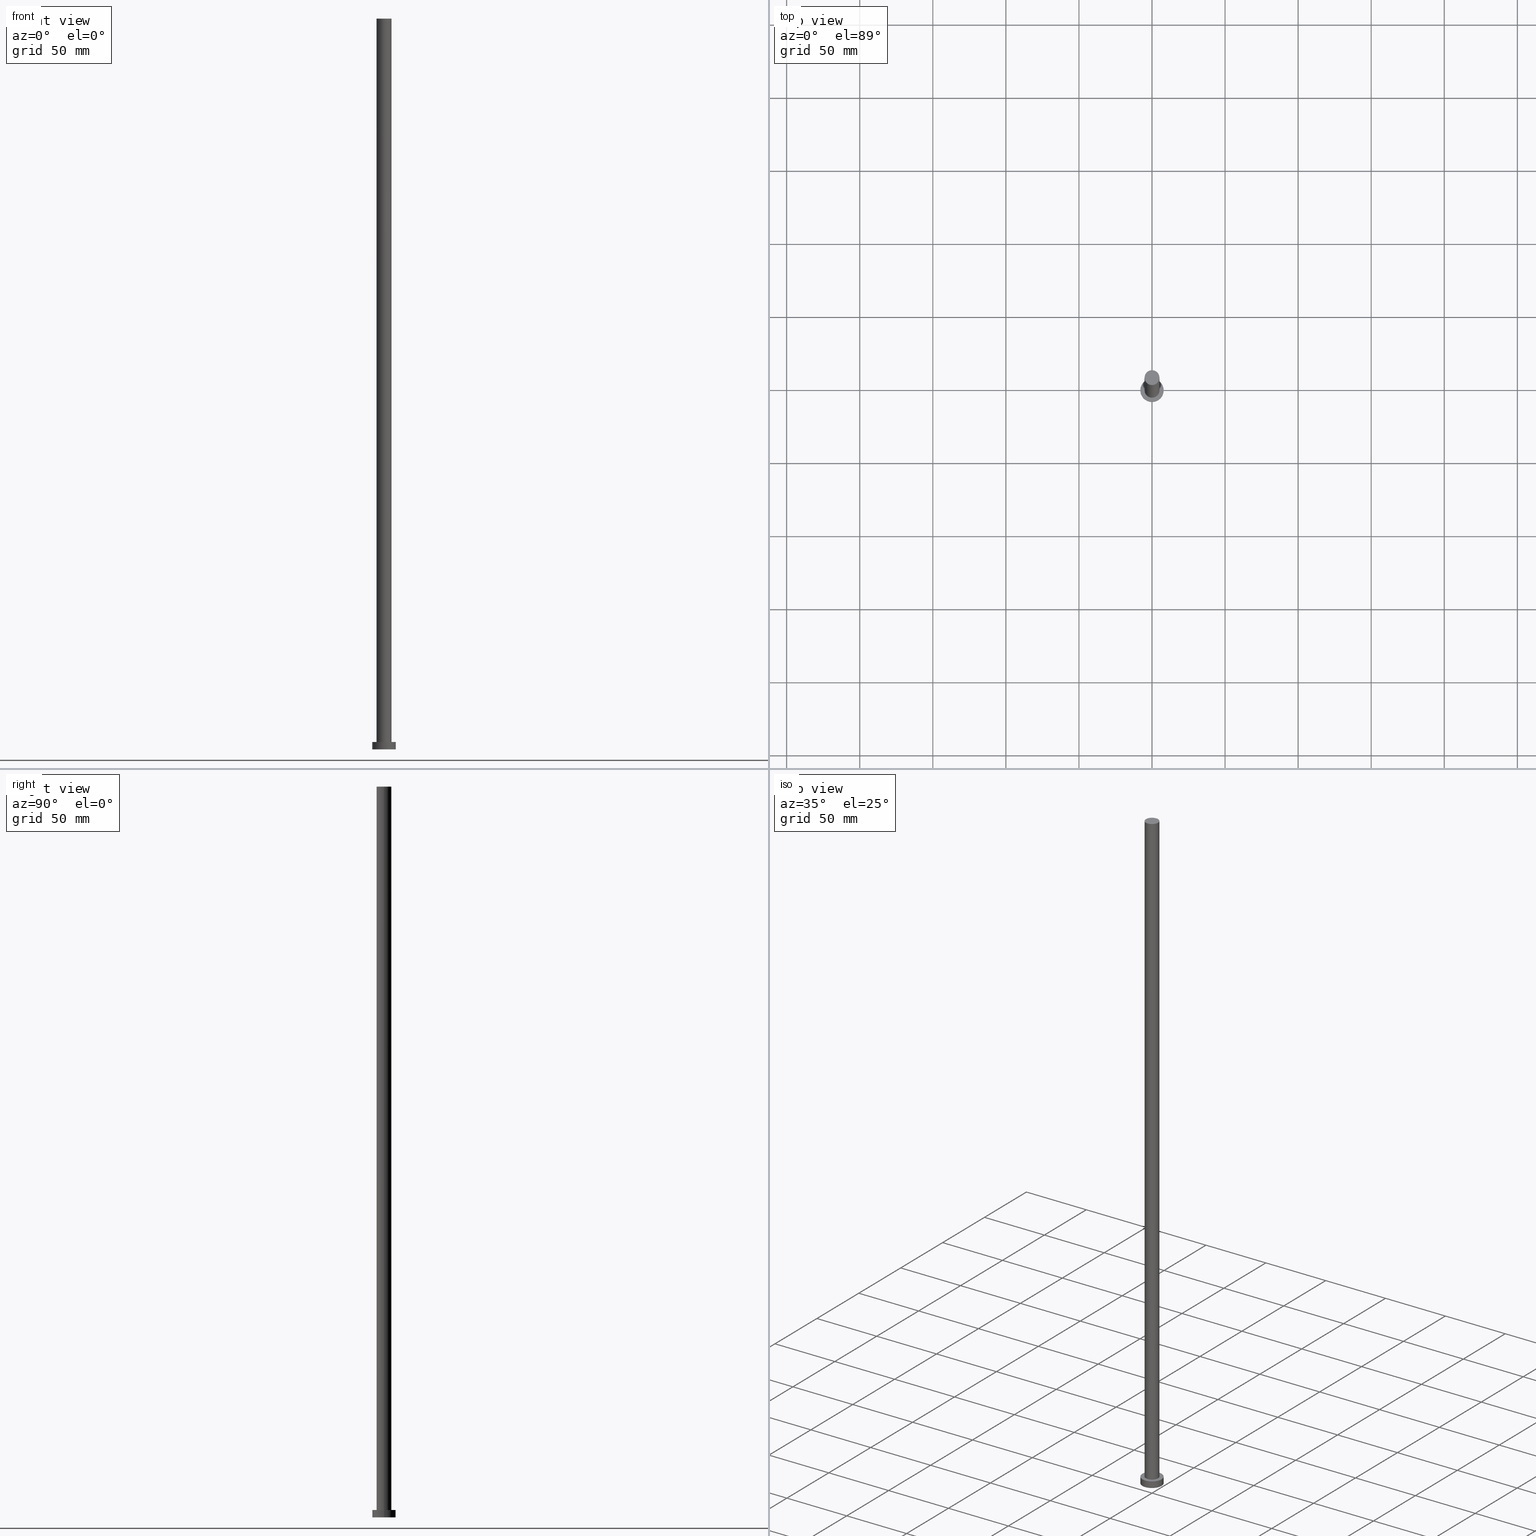
[diagram: canonical four-view strip — front | top / right | iso, engineering-drawing reading convention]
A machine part, canonical four-view strip (front | top / right | iso — engineering-drawing reading convention). The complete STEP part file that produces these views, byte-faithful:
ISO-10303-21;
HEADER;
FILE_DESCRIPTION (( 'STEP AP203' ),
    '1' );
FILE_NAME ('c0ff.STEP',
    '2023-02-12T10:58:17',
    ( '' ),
    ( '' ),
    'SwSTEP 2.0',
    'SolidWorks 2019',
    '' );
FILE_SCHEMA (( 'CONFIG_CONTROL_DESIGN' ));
ENDSEC;

DATA;
#1 = DIRECTION ( 'NONE',  ( 1.000000000000000000, 0.000000000000000000, 0.000000000000000000 ) ) ;
#2 = AXIS2_PLACEMENT_3D ( 'NONE', #12, #33, #134 ) ;
#3 = ADVANCED_FACE ( 'NONE', ( #16 ), #119, .T. ) ;
#4 = LINE ( 'NONE', #168, #56 ) ;
#5 = COORDINATED_UNIVERSAL_TIME_OFFSET ( 1, 0, .AHEAD. ) ;
#6 = CIRCLE ( 'NONE', #62, 5.099999999999999645 ) ;
#7 = PERSON_AND_ORGANIZATION ( #163, #160 ) ;
#8 = CC_DESIGN_DATE_AND_TIME_ASSIGNMENT ( #37, #105, ( #150 ) ) ;
#9 = PLANE ( 'NONE',  #157 ) ;
#10 = LOCAL_TIME ( 11, 58, 17.00000000000000000, #94 ) ;
#11 = FACE_OUTER_BOUND ( 'NONE', #58, .T. ) ;
#12 = CARTESIAN_POINT ( 'NONE',  ( 0.000000000000000000, 0.000000000000000000, 500.0000000000000000 ) ) ;
#13 = DIRECTION ( 'NONE',  ( 1.000000000000000000, 0.000000000000000000, -0.000000000000000000 ) ) ;
#14 = EDGE_CURVE ( 'NONE', #122, #131, #142, .T. ) ;
#15 = ORIENTED_EDGE ( 'NONE', *, *, #245, .F. ) ;
#16 = FACE_OUTER_BOUND ( 'NONE', #161, .T. ) ;
#17 = VERTEX_POINT ( 'NONE', #255 ) ;
#18 = PERSON_AND_ORGANIZATION ( #163, #160 ) ;
#19 = AXIS2_PLACEMENT_3D ( 'NONE', #215, #36, #77 ) ;
#20 = PRODUCT_DEFINITION ( 'NEZN�M�', '', #125, #202 ) ;
#21 = PERSON_AND_ORGANIZATION ( #163, #160 ) ;
#22 = CC_DESIGN_PERSON_AND_ORGANIZATION_ASSIGNMENT ( #43, #34, ( #20 ) ) ;
#23 = AXIS2_PLACEMENT_3D ( 'NONE', #194, #155, #147 ) ;
#24 = CARTESIAN_POINT ( 'NONE',  ( 0.000000000000000000, 0.000000000000000000, 5.000000000000000000 ) ) ;
#25 = EDGE_LOOP ( 'NONE', ( #248, #207, #39, #15 ) ) ;
#26 = APPROVAL_PERSON_ORGANIZATION ( #21, #49, #75 ) ;
#27 = DIRECTION ( 'NONE',  ( -1.000000000000000000, 0.000000000000000000, 0.000000000000000000 ) ) ;
#28 = ADVANCED_FACE ( 'NONE', ( #156 ), #180, .T. ) ;
#29 = APPLICATION_CONTEXT ( 'configuration controlled 3d designs of mechanical parts and assemblies' ) ;
#30 = DIRECTION ( 'NONE',  ( 0.000000000000000000, 0.000000000000000000, 1.000000000000000000 ) ) ;
#31 = AXIS2_PLACEMENT_3D ( 'NONE', #198, #179, #55 ) ;
#32 =( NAMED_UNIT ( * ) SI_UNIT ( $, .STERADIAN. ) SOLID_ANGLE_UNIT ( ) );
#33 = DIRECTION ( 'NONE',  ( -0.000000000000000000, -0.000000000000000000, -1.000000000000000000 ) ) ;
#34 = PERSON_AND_ORGANIZATION_ROLE ( 'creator' ) ;
#35 = ORIENTED_EDGE ( 'NONE', *, *, #251, .F. ) ;
#36 = DIRECTION ( 'NONE',  ( 0.000000000000000000, 0.000000000000000000, 1.000000000000000000 ) ) ;
#37 = DATE_AND_TIME ( #217, #225 ) ;
#38 = CIRCLE ( 'NONE', #107, 8.000000000000000000 ) ;
#39 = ORIENTED_EDGE ( 'NONE', *, *, #70, .T. ) ;
#40 = PERSON_AND_ORGANIZATION ( #163, #160 ) ;
#41 = CIRCLE ( 'NONE', #169, 5.099999999999999645 ) ;
#42 = FACE_OUTER_BOUND ( 'NONE', #96, .T. ) ;
#43 = PERSON_AND_ORGANIZATION ( #163, #160 ) ;
#44 = FACE_OUTER_BOUND ( 'NONE', #25, .T. ) ;
#45 = CIRCLE ( 'NONE', #193, 5.099999999999999645 ) ;
#46 = DIRECTION ( 'NONE',  ( -0.000000000000000000, -0.000000000000000000, -1.000000000000000000 ) ) ;
#47 = ORIENTED_EDGE ( 'NONE', *, *, #87, .F. ) ;
#48 = UNCERTAINTY_MEASURE_WITH_UNIT (LENGTH_MEASURE( 1.000000000000000082E-05 ), #129, 'distance_accuracy_value', 'NONE');
#49 = APPROVAL ( #132, 'NEUR�EN�' ) ;
#50 = APPROVAL_PERSON_ORGANIZATION ( #7, #167, #188 ) ;
#51 = PLANE ( 'NONE',  #23 ) ;
#52 = DIRECTION ( 'NONE',  ( 1.000000000000000000, 0.000000000000000000, 0.000000000000000000 ) ) ;
#53 = ORIENTED_EDGE ( 'NONE', *, *, #70, .F. ) ;
#54 = CIRCLE ( 'NONE', #116, 8.000000000000000000 ) ;
#55 = DIRECTION ( 'NONE',  ( 1.000000000000000000, 0.000000000000000000, 0.000000000000000000 ) ) ;
#56 = VECTOR ( 'NONE', #102, 1000.000000000000000 ) ;
#57 = ORIENTED_EDGE ( 'NONE', *, *, #61, .T. ) ;
#58 = EDGE_LOOP ( 'NONE', ( #182, #72 ) ) ;
#59 = PERSON_AND_ORGANIZATION_ROLE ( 'classification_officer' ) ;
#60 = PERSON_AND_ORGANIZATION ( #163, #160 ) ;
#61 = EDGE_CURVE ( 'NONE', #154, #130, #67, .T. ) ;
#62 = AXIS2_PLACEMENT_3D ( 'NONE', #118, #165, #139 ) ;
#63 = DIRECTION ( 'NONE',  ( 1.000000000000000000, 0.000000000000000000, 0.000000000000000000 ) ) ;
#64 = DIRECTION ( 'NONE',  ( 1.000000000000000000, 0.000000000000000000, 0.000000000000000000 ) ) ;
#65 = ADVANCED_BREP_SHAPE_REPRESENTATION ( 'c0ff', ( #126, #178 ), #221 ) ;
#66 = DATE_AND_TIME ( #244, #189 ) ;
#67 = CIRCLE ( 'NONE', #19, 8.000000000000000000 ) ;
#68 = CARTESIAN_POINT ( 'NONE',  ( 0.000000000000000000, 0.000000000000000000, 500.0000000000000000 ) ) ;
#69 = CARTESIAN_POINT ( 'NONE',  ( -8.000000000000000000, 0.000000000000000000, 0.000000000000000000 ) ) ;
#70 = EDGE_CURVE ( 'NONE', #130, #154, #38, .T. ) ;
#71 = CARTESIAN_POINT ( 'NONE',  ( 5.099999999999999645, 6.245698675651500839E-16, 500.0000000000000000 ) ) ;
#72 = ORIENTED_EDGE ( 'NONE', *, *, #195, .T. ) ;
#73 = ADVANCED_FACE ( 'NONE', ( #44 ), #108, .T. ) ;
#74 = DIRECTION ( 'NONE',  ( -0.000000000000000000, -0.000000000000000000, -1.000000000000000000 ) ) ;
#75 = APPROVAL_ROLE ( '' ) ;
#76 = FACE_BOUND ( 'NONE', #123, .T. ) ;
#77 = DIRECTION ( 'NONE',  ( 1.000000000000000000, 0.000000000000000000, 0.000000000000000000 ) ) ;
#78 = ADVANCED_FACE ( 'NONE', ( #42 ), #9, .F. ) ;
#79 = CLOSED_SHELL ( 'NONE', ( #28, #73, #144, #90, #78, #3, #228 ) ) ;
#80 = AXIS2_PLACEMENT_3D ( 'NONE', #24, #82, #224 ) ;
#81 = DIRECTION ( 'NONE',  ( 1.000000000000000000, 0.000000000000000000, -0.000000000000000000 ) ) ;
#82 = DIRECTION ( 'NONE',  ( -0.000000000000000000, -0.000000000000000000, -1.000000000000000000 ) ) ;
#83 = CIRCLE ( 'NONE', #229, 5.099999999999999645 ) ;
#84 = CC_DESIGN_APPROVAL ( #190, ( #125 ) ) ;
#85 = CARTESIAN_POINT ( 'NONE',  ( 0.000000000000000000, 0.000000000000000000, 5.000000000000000000 ) ) ;
#86 = CARTESIAN_POINT ( 'NONE',  ( -8.000000000000000000, 0.000000000000000000, 5.000000000000000000 ) ) ;
#87 = EDGE_CURVE ( 'NONE', #99, #92, #220, .T. ) ;
#88 = CYLINDRICAL_SURFACE ( 'NONE', #110, 8.000000000000000000 ) ;
#89 = ORIENTED_EDGE ( 'NONE', *, *, #206, .F. ) ;
#90 = ADVANCED_FACE ( 'NONE', ( #76, #218 ), #51, .T. ) ;
#91 = COORDINATED_UNIVERSAL_TIME_OFFSET ( 1, 0, .AHEAD. ) ;
#92 = VERTEX_POINT ( 'NONE', #230 ) ;
#93 = PERSON_AND_ORGANIZATION ( #163, #160 ) ;
#94 = COORDINATED_UNIVERSAL_TIME_OFFSET ( 1, 0, .AHEAD. ) ;
#95 = DATE_AND_TIME ( #120, #243 ) ;
#96 = EDGE_LOOP ( 'NONE', ( #196, #53 ) ) ;
#97 = PRODUCT_DEFINITION_SHAPE ( 'NONE', 'NONE',  #20 ) ;
#98 = CARTESIAN_POINT ( 'NONE',  ( -5.099999999999999645, 0.000000000000000000, 500.0000000000000000 ) ) ;
#99 = VERTEX_POINT ( 'NONE', #236 ) ;
#100 = DIRECTION ( 'NONE',  ( 0.000000000000000000, 0.000000000000000000, 1.000000000000000000 ) ) ;
#101 = CC_DESIGN_PERSON_AND_ORGANIZATION_ASSIGNMENT ( #40, #59, ( #150 ) ) ;
#102 = DIRECTION ( 'NONE',  ( -0.000000000000000000, -0.000000000000000000, -1.000000000000000000 ) ) ;
#103 = ORIENTED_EDGE ( 'NONE', *, *, #254, .T. ) ;
#104 = EDGE_CURVE ( 'NONE', #131, #122, #54, .T. ) ;
#105 = DATE_TIME_ROLE ( 'classification_date' ) ;
#106 = APPLICATION_PROTOCOL_DEFINITION ( 'international standard', 'config_control_design', 1994, #29 ) ;
#107 = AXIS2_PLACEMENT_3D ( 'NONE', #124, #138, #227 ) ;
#108 = CYLINDRICAL_SURFACE ( 'NONE', #80, 8.000000000000000000 ) ;
#109 = EDGE_LOOP ( 'NONE', ( #146, #240, #214, #47 ) ) ;
#110 = AXIS2_PLACEMENT_3D ( 'NONE', #211, #174, #27 ) ;
#111 = CC_DESIGN_SECURITY_CLASSIFICATION ( #150, ( #125 ) ) ;
#112 = ORIENTED_EDGE ( 'NONE', *, *, #254, .F. ) ;
#113 = DATE_TIME_ROLE ( 'creation_date' ) ;
#114 = LINE ( 'NONE', #149, #166 ) ;
#115 = APPLICATION_PROTOCOL_DEFINITION ( 'international standard', 'config_control_design', 1994, #127 ) ;
#116 = AXIS2_PLACEMENT_3D ( 'NONE', #216, #100, #183 ) ;
#117 = PRODUCT_RELATED_PRODUCT_CATEGORY ( 'detail', '', ( #197 ) ) ;
#118 = CARTESIAN_POINT ( 'NONE',  ( 0.000000000000000000, 0.000000000000000000, 5.000000000000000000 ) ) ;
#119 = CYLINDRICAL_SURFACE ( 'NONE', #2, 5.099999999999999645 ) ;
#120 = CALENDAR_DATE ( 2023, 12, 2 ) ;
#121 = DIRECTION ( 'NONE',  ( 0.000000000000000000, 0.000000000000000000, 1.000000000000000000 ) ) ;
#122 = VERTEX_POINT ( 'NONE', #86 ) ;
#123 = EDGE_LOOP ( 'NONE', ( #112, #89 ) ) ;
#124 = CARTESIAN_POINT ( 'NONE',  ( 0.000000000000000000, 0.000000000000000000, 0.000000000000000000 ) ) ;
#125 = PRODUCT_DEFINITION_FORMATION_WITH_SPECIFIED_SOURCE ( 'LIBOVOLN�', '', #197, .NOT_KNOWN. ) ;
#126 = MANIFOLD_SOLID_BREP ( 'P�idat vysunut�m3', #79 ) ;
#127 = APPLICATION_CONTEXT ( 'configuration controlled 3d designs of mechanical parts and assemblies' ) ;
#128 = EDGE_LOOP ( 'NONE', ( #210, #219 ) ) ;
#129 =( LENGTH_UNIT ( ) NAMED_UNIT ( * ) SI_UNIT ( .MILLI., .METRE. ) );
#130 = VERTEX_POINT ( 'NONE', #223 ) ;
#131 = VERTEX_POINT ( 'NONE', #170 ) ;
#132 = APPROVAL_STATUS ( 'not_yet_approved' ) ;
#133 = CARTESIAN_POINT ( 'NONE',  ( 0.000000000000000000, 0.000000000000000000, 0.000000000000000000 ) ) ;
#134 = DIRECTION ( 'NONE',  ( -1.000000000000000000, 0.000000000000000000, 0.000000000000000000 ) ) ;
#135 = DIRECTION ( 'NONE',  ( 0.000000000000000000, 0.000000000000000000, 1.000000000000000000 ) ) ;
#136 = APPROVAL_DATE_TIME ( #200, #49 ) ;
#137 = DIRECTION ( 'NONE',  ( 0.000000000000000000, 0.000000000000000000, 1.000000000000000000 ) ) ;
#138 = DIRECTION ( 'NONE',  ( 0.000000000000000000, 0.000000000000000000, 1.000000000000000000 ) ) ;
#139 = DIRECTION ( 'NONE',  ( 1.000000000000000000, 0.000000000000000000, 0.000000000000000000 ) ) ;
#140 = CC_DESIGN_PERSON_AND_ORGANIZATION_ASSIGNMENT ( #93, #176, ( #125 ) ) ;
#141 = PERSON_AND_ORGANIZATION_ROLE ( 'creator' ) ;
#142 = CIRCLE ( 'NONE', #31, 8.000000000000000000 ) ;
#143 = FACE_OUTER_BOUND ( 'NONE', #238, .T. ) ;
#144 = ADVANCED_FACE ( 'NONE', ( #143 ), #88, .T. ) ;
#145 = CC_DESIGN_APPROVAL ( #167, ( #20 ) ) ;
#146 = ORIENTED_EDGE ( 'NONE', *, *, #195, .F. ) ;
#147 = DIRECTION ( 'NONE',  ( 1.000000000000000000, 0.000000000000000000, -0.000000000000000000 ) ) ;
#148 = CALENDAR_DATE ( 2023, 12, 2 ) ;
#149 = CARTESIAN_POINT ( 'NONE',  ( 8.000000000000000000, 9.797174393178825657E-16, 5.000000000000000000 ) ) ;
#150 = SECURITY_CLASSIFICATION ( '', '', #222 ) ;
#151 = EDGE_CURVE ( 'NONE', #17, #175, #249, .T. ) ;
#152 = PERSON_AND_ORGANIZATION ( #163, #160 ) ;
#153 = PLANE ( 'NONE',  #172 ) ;
#154 = VERTEX_POINT ( 'NONE', #69 ) ;
#155 = DIRECTION ( 'NONE',  ( 0.000000000000000000, 0.000000000000000000, 1.000000000000000000 ) ) ;
#156 = FACE_OUTER_BOUND ( 'NONE', #109, .T. ) ;
#157 = AXIS2_PLACEMENT_3D ( 'NONE', #133, #121, #13 ) ;
#158 = COORDINATED_UNIVERSAL_TIME_OFFSET ( 1, 0, .AHEAD. ) ;
#159 = EDGE_CURVE ( 'NONE', #131, #130, #114, .T. ) ;
#160 = ORGANIZATION ( 'NEUR�EN�', 'NEUR�EN�', '' ) ;
#161 = EDGE_LOOP ( 'NONE', ( #234, #35, #171, #103 ) ) ;
#162 = CALENDAR_DATE ( 2023, 12, 2 ) ;
#163 = PERSON ( 'NEUR�EN�', 'NEUR�EN�', 'NEUR�EN�', ('NEUR�EN�'), ('NEUR�EN�'), ('NEUR�EN�') ) ;
#164 = COORDINATED_UNIVERSAL_TIME_OFFSET ( 1, 0, .AHEAD. ) ;
#165 = DIRECTION ( 'NONE',  ( 0.000000000000000000, 0.000000000000000000, 1.000000000000000000 ) ) ;
#166 = VECTOR ( 'NONE', #46, 1000.000000000000000 ) ;
#167 = APPROVAL ( #173, 'NEUR�EN�' ) ;
#168 = CARTESIAN_POINT ( 'NONE',  ( -8.000000000000000000, 0.000000000000000000, 5.000000000000000000 ) ) ;
#169 = AXIS2_PLACEMENT_3D ( 'NONE', #184, #233, #52 ) ;
#170 = CARTESIAN_POINT ( 'NONE',  ( 8.000000000000000000, 9.797174393178825657E-16, 5.000000000000000000 ) ) ;
#171 = ORIENTED_EDGE ( 'NONE', *, *, #87, .T. ) ;
#172 = AXIS2_PLACEMENT_3D ( 'NONE', #192, #187, #81 ) ;
#173 = APPROVAL_STATUS ( 'not_yet_approved' ) ;
#174 = DIRECTION ( 'NONE',  ( -0.000000000000000000, -0.000000000000000000, -1.000000000000000000 ) ) ;
#175 = VERTEX_POINT ( 'NONE', #191 ) ;
#176 = PERSON_AND_ORGANIZATION_ROLE ( 'design_supplier' ) ;
#177 = DIRECTION ( 'NONE',  ( -0.000000000000000000, -0.000000000000000000, -1.000000000000000000 ) ) ;
#178 = AXIS2_PLACEMENT_3D ( 'NONE', #241, #30, #63 ) ;
#179 = DIRECTION ( 'NONE',  ( 0.000000000000000000, 0.000000000000000000, 1.000000000000000000 ) ) ;
#180 = CYLINDRICAL_SURFACE ( 'NONE', #246, 5.099999999999999645 ) ;
#181 = APPROVAL_PERSON_ORGANIZATION ( #152, #190, #252 ) ;
#182 = ORIENTED_EDGE ( 'NONE', *, *, #251, .T. ) ;
#183 = DIRECTION ( 'NONE',  ( 1.000000000000000000, 0.000000000000000000, 0.000000000000000000 ) ) ;
#184 = CARTESIAN_POINT ( 'NONE',  ( 0.000000000000000000, 0.000000000000000000, 500.0000000000000000 ) ) ;
#185 = SHAPE_DEFINITION_REPRESENTATION ( #97, #65 ) ;
#186 = VECTOR ( 'NONE', #177, 1000.000000000000000 ) ;
#187 = DIRECTION ( 'NONE',  ( 0.000000000000000000, 0.000000000000000000, 1.000000000000000000 ) ) ;
#188 = APPROVAL_ROLE ( '' ) ;
#189 = LOCAL_TIME ( 11, 58, 17.00000000000000000, #5 ) ;
#190 = APPROVAL ( #208, 'NEUR�EN�' ) ;
#191 = CARTESIAN_POINT ( 'NONE',  ( 5.099999999999999645, 6.245698675651500839E-16, 5.000000000000000000 ) ) ;
#192 = CARTESIAN_POINT ( 'NONE',  ( 0.000000000000000000, 0.000000000000000000, 500.0000000000000000 ) ) ;
#193 = AXIS2_PLACEMENT_3D ( 'NONE', #68, #135, #64 ) ;
#194 = CARTESIAN_POINT ( 'NONE',  ( 0.000000000000000000, 0.000000000000000000, 5.000000000000000000 ) ) ;
#195 = EDGE_CURVE ( 'NONE', #17, #99, #45, .T. ) ;
#196 = ORIENTED_EDGE ( 'NONE', *, *, #61, .F. ) ;
#197 = PRODUCT ( 'c0ff', 'c0ff', '', ( #203 ) ) ;
#198 = CARTESIAN_POINT ( 'NONE',  ( 0.000000000000000000, 0.000000000000000000, 5.000000000000000000 ) ) ;
#199 = ORIENTED_EDGE ( 'NONE', *, *, #245, .T. ) ;
#200 = DATE_AND_TIME ( #162, #250 ) ;
#201 = CC_DESIGN_PERSON_AND_ORGANIZATION_ASSIGNMENT ( #60, #141, ( #125 ) ) ;
#202 = DESIGN_CONTEXT ( 'detailed design', #29, 'design' ) ;
#203 = MECHANICAL_CONTEXT ( 'NONE', #127, 'mechanical' ) ;
#204 = ORIENTED_EDGE ( 'NONE', *, *, #14, .F. ) ;
#205 = CC_DESIGN_APPROVAL ( #49, ( #150 ) ) ;
#206 = EDGE_CURVE ( 'NONE', #175, #92, #83, .T. ) ;
#207 = ORIENTED_EDGE ( 'NONE', *, *, #159, .T. ) ;
#208 = APPROVAL_STATUS ( 'not_yet_approved' ) ;
#209 = CC_DESIGN_PERSON_AND_ORGANIZATION_ASSIGNMENT ( #18, #242, ( #197 ) ) ;
#210 = ORIENTED_EDGE ( 'NONE', *, *, #14, .T. ) ;
#211 = CARTESIAN_POINT ( 'NONE',  ( 0.000000000000000000, 0.000000000000000000, 5.000000000000000000 ) ) ;
#212 = VECTOR ( 'NONE', #232, 1000.000000000000000 ) ;
#213 =( NAMED_UNIT ( * ) PLANE_ANGLE_UNIT ( ) SI_UNIT ( $, .RADIAN. ) );
#214 = ORIENTED_EDGE ( 'NONE', *, *, #206, .T. ) ;
#215 = CARTESIAN_POINT ( 'NONE',  ( 0.000000000000000000, 0.000000000000000000, 0.000000000000000000 ) ) ;
#216 = CARTESIAN_POINT ( 'NONE',  ( 0.000000000000000000, 0.000000000000000000, 5.000000000000000000 ) ) ;
#217 = CALENDAR_DATE ( 2023, 12, 2 ) ;
#218 = FACE_OUTER_BOUND ( 'NONE', #128, .T. ) ;
#219 = ORIENTED_EDGE ( 'NONE', *, *, #104, .T. ) ;
#220 = LINE ( 'NONE', #98, #186 ) ;
#221 =( GEOMETRIC_REPRESENTATION_CONTEXT ( 3 ) GLOBAL_UNCERTAINTY_ASSIGNED_CONTEXT ( ( #48 ) ) GLOBAL_UNIT_ASSIGNED_CONTEXT ( ( #129, #213, #32 ) ) REPRESENTATION_CONTEXT ( 'NONE', 'WORKASPACE' ) );
#222 = SECURITY_CLASSIFICATION_LEVEL ( 'unclassified' ) ;
#223 = CARTESIAN_POINT ( 'NONE',  ( 8.000000000000000000, 9.797174393178825657E-16, 0.000000000000000000 ) ) ;
#224 = DIRECTION ( 'NONE',  ( -1.000000000000000000, 0.000000000000000000, 0.000000000000000000 ) ) ;
#225 = LOCAL_TIME ( 11, 58, 17.00000000000000000, #158 ) ;
#226 = APPROVAL_DATE_TIME ( #66, #167 ) ;
#227 = DIRECTION ( 'NONE',  ( 1.000000000000000000, 0.000000000000000000, 0.000000000000000000 ) ) ;
#228 = ADVANCED_FACE ( 'NONE', ( #11 ), #153, .T. ) ;
#229 = AXIS2_PLACEMENT_3D ( 'NONE', #85, #137, #1 ) ;
#230 = CARTESIAN_POINT ( 'NONE',  ( -5.099999999999999645, 0.000000000000000000, 5.000000000000000000 ) ) ;
#231 = DATE_AND_TIME ( #148, #10 ) ;
#232 = DIRECTION ( 'NONE',  ( -0.000000000000000000, -0.000000000000000000, -1.000000000000000000 ) ) ;
#233 = DIRECTION ( 'NONE',  ( 0.000000000000000000, 0.000000000000000000, 1.000000000000000000 ) ) ;
#234 = ORIENTED_EDGE ( 'NONE', *, *, #151, .F. ) ;
#235 = DIRECTION ( 'NONE',  ( -1.000000000000000000, 0.000000000000000000, 0.000000000000000000 ) ) ;
#236 = CARTESIAN_POINT ( 'NONE',  ( -5.099999999999999645, 0.000000000000000000, 500.0000000000000000 ) ) ;
#237 = CC_DESIGN_DATE_AND_TIME_ASSIGNMENT ( #95, #113, ( #20 ) ) ;
#238 = EDGE_LOOP ( 'NONE', ( #247, #204, #199, #57 ) ) ;
#239 = APPROVAL_DATE_TIME ( #231, #190 ) ;
#240 = ORIENTED_EDGE ( 'NONE', *, *, #151, .T. ) ;
#241 = CARTESIAN_POINT ( 'NONE',  ( 0.000000000000000000, 0.000000000000000000, 0.000000000000000000 ) ) ;
#242 = PERSON_AND_ORGANIZATION_ROLE ( 'design_owner' ) ;
#243 = LOCAL_TIME ( 11, 58, 17.00000000000000000, #91 ) ;
#244 = CALENDAR_DATE ( 2023, 12, 2 ) ;
#245 = EDGE_CURVE ( 'NONE', #122, #154, #4, .T. ) ;
#246 = AXIS2_PLACEMENT_3D ( 'NONE', #253, #74, #235 ) ;
#247 = ORIENTED_EDGE ( 'NONE', *, *, #159, .F. ) ;
#248 = ORIENTED_EDGE ( 'NONE', *, *, #104, .F. ) ;
#249 = LINE ( 'NONE', #71, #212 ) ;
#250 = LOCAL_TIME ( 11, 58, 17.00000000000000000, #164 ) ;
#251 = EDGE_CURVE ( 'NONE', #99, #17, #41, .T. ) ;
#252 = APPROVAL_ROLE ( '' ) ;
#253 = CARTESIAN_POINT ( 'NONE',  ( 0.000000000000000000, 0.000000000000000000, 500.0000000000000000 ) ) ;
#254 = EDGE_CURVE ( 'NONE', #92, #175, #6, .T. ) ;
#255 = CARTESIAN_POINT ( 'NONE',  ( 5.099999999999999645, 6.245698675651500839E-16, 500.0000000000000000 ) ) ;
ENDSEC;
END-ISO-10303-21;
